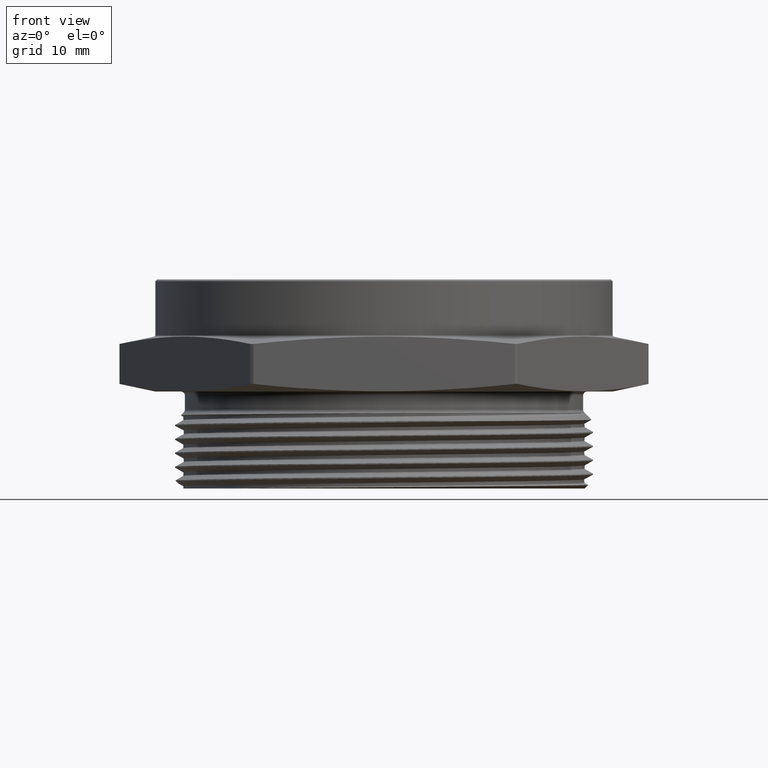
[diagram: clean part render]
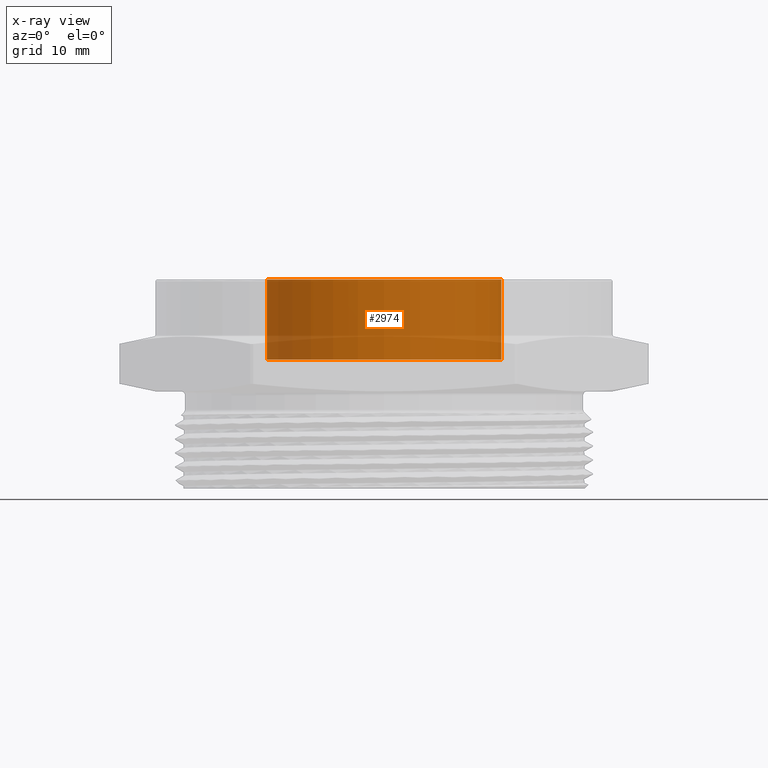
[diagram: x-ray — body ghosted, one internal face saturated and labeled with its STEP entity id]
A machine part, front view, then the same camera in x-ray: the body is ghosted and one INTERNAL B-rep face — a face not visible from any outside direction — is saturated and labeled: STEP entity #2974.
In plain terms, the highlighted cylindrical surface (partial cylindrical patch) has radius 17.8054 mm, axis along (0, 0, 1).
Its self-contained STEP definition (entity closure, byte-faithful):
#6 = VERTEX_POINT ( 'NONE', #3226 ) ;
#7 = VERTEX_POINT ( 'NONE', #3218 ) ;
#9 = VERTEX_POINT ( 'NONE', #3249 ) ;
#148 = VERTEX_POINT ( 'NONE', #3282 ) ;
#231 = EDGE_LOOP ( 'NONE', ( #3028, #3029, #3030, #3031 ) ) ;
#439 = LINE ( 'NONE', #781, #441 ) ;
#440 = LINE ( 'NONE', #787, #445 ) ;
#441 = VECTOR ( 'NONE', #782, 39.37007874015748100 ) ;
#443 = CIRCLE ( 'NONE', #1879, 0.7009999999999999600 ) ;
#445 = VECTOR ( 'NONE', #783, 39.37007874015748100 ) ;
#446 = CIRCLE ( 'NONE', #1880, 0.7009999999999999600 ) ;
#514 = FACE_OUTER_BOUND ( 'NONE', #231, .T. ) ;
#526 = CYLINDRICAL_SURFACE ( 'NONE', #1921, 0.7009999999999999600 ) ;
#781 = CARTESIAN_POINT ( 'NONE',  ( -0.7009999999999999600, 8.584774062022943000E-017, 0.1899999999999999500 ) ) ;
#782 = DIRECTION ( 'NONE',  ( 0.0000000000000000000, 0.0000000000000000000, 1.000000000000000000 ) ) ;
#783 = DIRECTION ( 'NONE',  ( 0.0000000000000000000, 0.0000000000000000000, 1.000000000000000000 ) ) ;
#787 = CARTESIAN_POINT ( 'NONE',  ( 0.7009999999999999600, 0.0000000000000000000, 0.1899999999999999500 ) ) ;
#791 = CARTESIAN_POINT ( 'NONE',  ( 0.0000000000000000000, 0.0000000000000000000, 0.1899999999999999500 ) ) ;
#792 = DIRECTION ( 'NONE',  ( 0.0000000000000000000, 0.0000000000000000000, 1.000000000000000000 ) ) ;
#793 = DIRECTION ( 'NONE',  ( 1.000000000000000000, 0.0000000000000000000, 0.0000000000000000000 ) ) ;
#794 = CARTESIAN_POINT ( 'NONE',  ( 0.0000000000000000000, 0.0000000000000000000, 0.6699999999999999300 ) ) ;
#795 = DIRECTION ( 'NONE',  ( 0.0000000000000000000, 0.0000000000000000000, 1.000000000000000000 ) ) ;
#796 = DIRECTION ( 'NONE',  ( 1.000000000000000000, 0.0000000000000000000, 0.0000000000000000000 ) ) ;
#1782 = DIRECTION ( 'NONE',  ( 1.000000000000000000, 0.0000000000000000000, 0.0000000000000000000 ) ) ;
#1783 = CARTESIAN_POINT ( 'NONE',  ( 0.0000000000000000000, 0.0000000000000000000, 0.1899999999999999500 ) ) ;
#1784 = DIRECTION ( 'NONE',  ( 0.0000000000000000000, 0.0000000000000000000, 1.000000000000000000 ) ) ;
#1879 = AXIS2_PLACEMENT_3D ( 'NONE', #791, #792, #793 ) ;
#1880 = AXIS2_PLACEMENT_3D ( 'NONE', #794, #795, #796 ) ;
#1921 = AXIS2_PLACEMENT_3D ( 'NONE', #1783, #1784, #1782 ) ;
#2835 = EDGE_CURVE ( 'NONE', #9, #148, #439, .T. ) ;
#2838 = EDGE_CURVE ( 'NONE', #7, #6, #440, .T. ) ;
#2839 = EDGE_CURVE ( 'NONE', #9, #7, #443, .T. ) ;
#2840 = EDGE_CURVE ( 'NONE', #148, #6, #446, .T. ) ;
#2974 = ADVANCED_FACE ( 'NONE', ( #514 ), #526, .T. ) ;
#3028 = ORIENTED_EDGE ( 'NONE', *, *, #2835, .F. ) ;
#3029 = ORIENTED_EDGE ( 'NONE', *, *, #2839, .T. ) ;
#3030 = ORIENTED_EDGE ( 'NONE', *, *, #2838, .T. ) ;
#3031 = ORIENTED_EDGE ( 'NONE', *, *, #2840, .F. ) ;
#3218 = CARTESIAN_POINT ( 'NONE',  ( 0.7009999999999999600, 0.0000000000000000000, 0.1899999999999999500 ) ) ;
#3226 = CARTESIAN_POINT ( 'NONE',  ( 0.7009999999999999600, 0.0000000000000000000, 0.6699999999999999300 ) ) ;
#3249 = CARTESIAN_POINT ( 'NONE',  ( -0.7009999999999999600, 8.584774062022943000E-017, 0.1899999999999999500 ) ) ;
#3282 = CARTESIAN_POINT ( 'NONE',  ( -0.7009999999999999600, 8.584774062022943000E-017, 0.6699999999999999300 ) ) ;